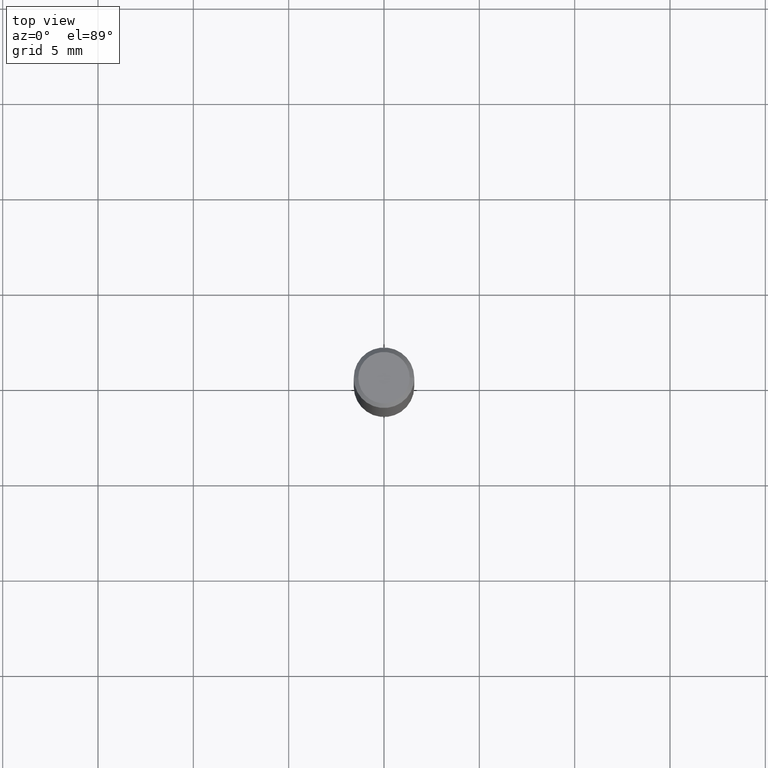
[diagram: clean part render]
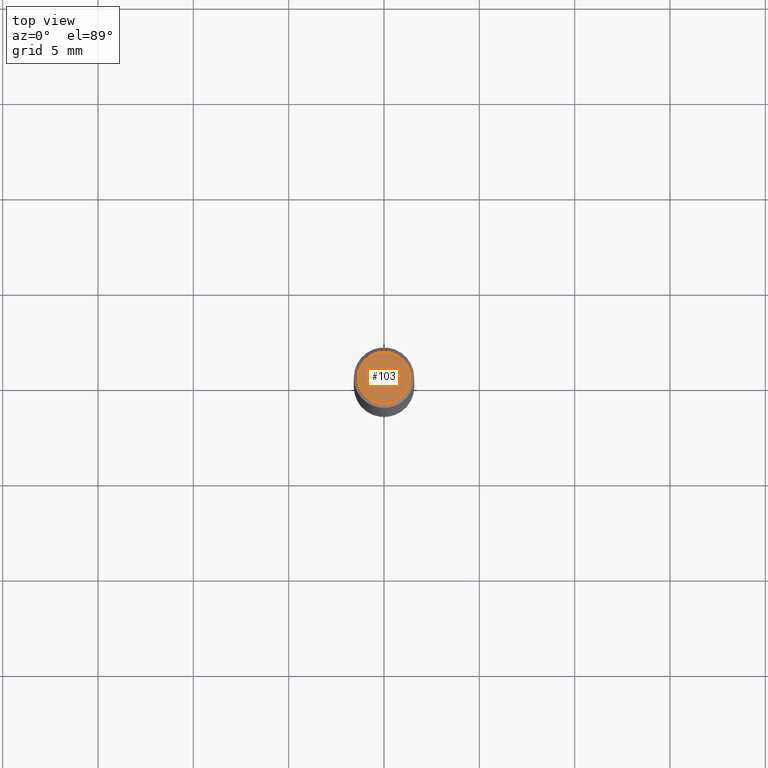
[diagram: same view with one face highlighted and labeled with its STEP entity id]
A machine part, top view. The second image highlights one B-rep face of the part: STEP entity #103.
In plain terms, the highlighted planar face has unit normal (0, -0, -1).
Its self-contained STEP definition (entity closure, byte-faithful):
#5 = ORIENTED_EDGE ( 'NONE', *, *, #77, .T. ) ;
#63 = AXIS2_PLACEMENT_3D ( 'NONE', #513, #152, #154 ) ;
#67 = DIRECTION ( 'NONE',  ( -1.000000000000000000, 6.982962677686265922E-15, -4.876176775795935793E-29 ) ) ;
#77 = EDGE_CURVE ( 'NONE', #530, #364, #188, .T. ) ;
#84 = AXIS2_PLACEMENT_3D ( 'NONE', #333, #459, #380 ) ;
#103 = ADVANCED_FACE ( 'NONE', ( #570 ), #217, .F. ) ;
#111 = CIRCLE ( 'NONE', #84, 0.05312499999999999861 ) ;
#121 = EDGE_LOOP ( 'NONE', ( #5, #294 ) ) ;
#152 = DIRECTION ( 'NONE',  ( -2.445468806185136597E-29, 3.491481338843145583E-15, 1.000000000000000000 ) ) ;
#154 = DIRECTION ( 'NONE',  ( 1.000000000000000000, -6.982962677686266711E-15, 4.875930095424100059E-29 ) ) ;
#166 = CARTESIAN_POINT ( 'NONE',  ( 7.076796394983739835E-47, -1.010378970665454992E-32, -2.893840386385196200E-18 ) ) ;
#188 = CIRCLE ( 'NONE', #63, 0.05312499999999999861 ) ;
#208 = AXIS2_PLACEMENT_3D ( 'NONE', #166, #352, #67 ) ;
#217 = PLANE ( 'NONE',  #208 ) ;
#294 = ORIENTED_EDGE ( 'NONE', *, *, #305, .T. ) ;
#305 = EDGE_CURVE ( 'NONE', #364, #530, #111, .T. ) ;
#333 = CARTESIAN_POINT ( 'NONE',  ( 1.415359278996747967E-46, -2.020757941330909984E-32, -5.787680772770392401E-18 ) ) ;
#352 = DIRECTION ( 'NONE',  ( 2.438088387897960049E-29, -3.491481338843145188E-15, -1.000000000000000000 ) ) ;
#364 = VERTEX_POINT ( 'NONE', #505 ) ;
#380 = DIRECTION ( 'NONE',  ( 1.000000000000000000, -6.982962677686266711E-15, 4.875930095424100059E-29 ) ) ;
#381 = CARTESIAN_POINT ( 'NONE',  ( -0.05312499999999999861, 3.873362110279099094E-16, -5.787680772773044021E-18 ) ) ;
#459 = DIRECTION ( 'NONE',  ( -2.445468806185136597E-29, 3.491481338843145583E-15, 1.000000000000000000 ) ) ;
#505 = CARTESIAN_POINT ( 'NONE',  ( 0.05312499999999999861, -4.129888592719939842E-16, -5.787680772767651417E-18 ) ) ;
#513 = CARTESIAN_POINT ( 'NONE',  ( 1.415359278996747967E-46, -2.020757941330909984E-32, -5.787680772770392401E-18 ) ) ;
#530 = VERTEX_POINT ( 'NONE', #381 ) ;
#570 = FACE_OUTER_BOUND ( 'NONE', #121, .T. ) ;